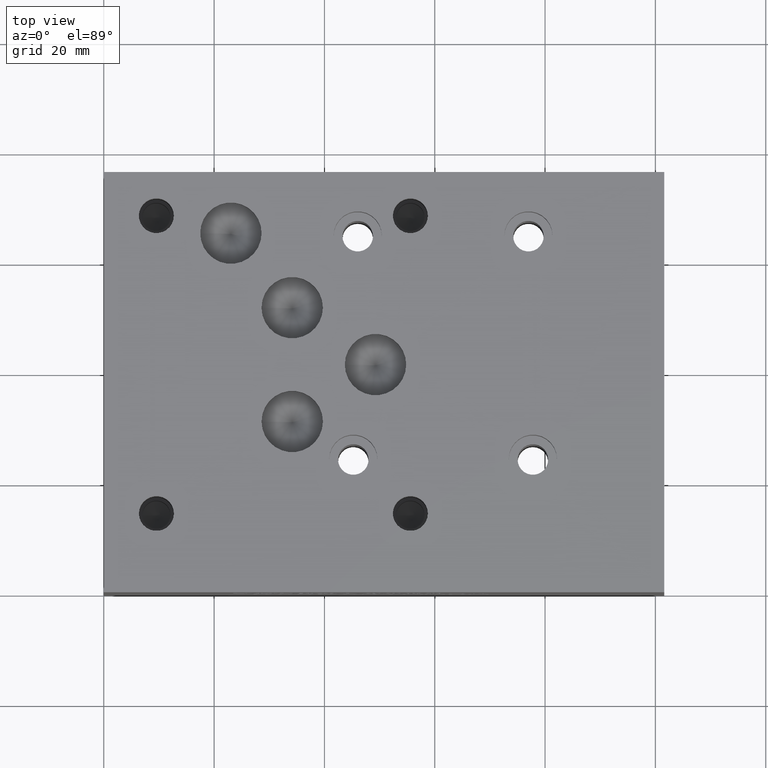
[diagram: clean part render]
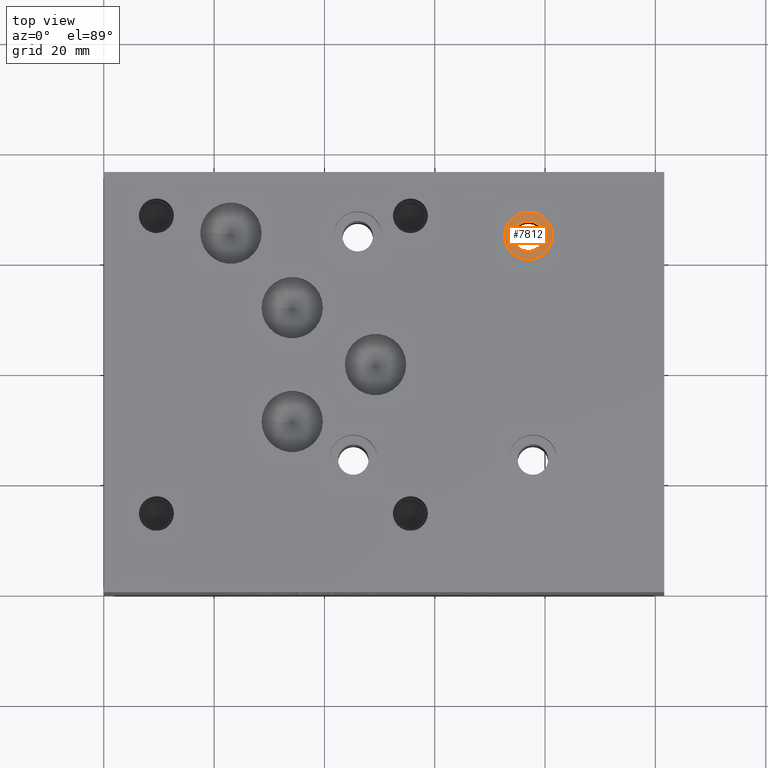
[diagram: same view with one face highlighted and labeled with its STEP entity id]
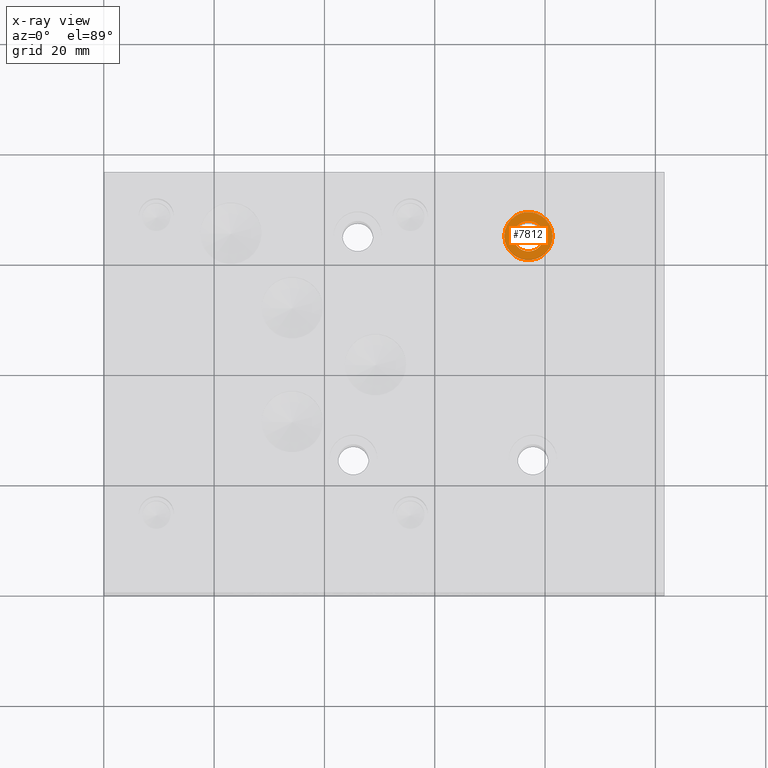
[diagram: x-ray of the same camera — body ghosted, the highlighted face saturated]
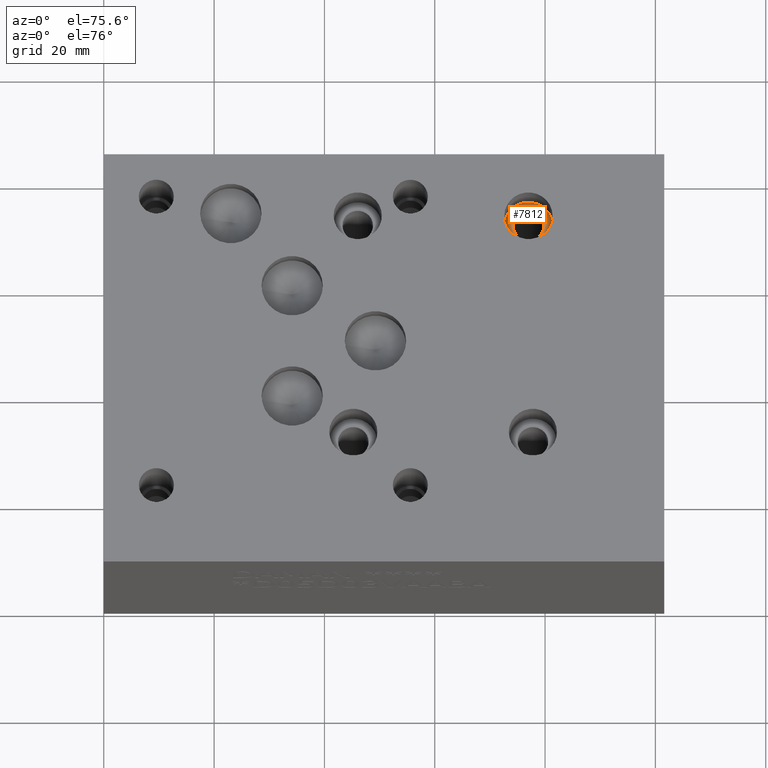
[diagram: same view with one face highlighted and labeled with its STEP entity id]
A machine part, top view. The second image highlights one B-rep face of the part: STEP entity #7812.
The next image is the same camera in x-ray: the body ghosted, the highlighted face saturated — about 0% of this face is hidden behind the body in this view.
A second angle (auxiliary view) of the same face is appended — the face is thin or edge-on in the first view.
In plain terms, the highlighted planar face has unit normal (0, 0, 1).
Its self-contained STEP definition (entity closure, byte-faithful):
#80=CIRCLE('',#8178,4.3688);
#81=CIRCLE('',#8179,2.7686);
#456=FACE_BOUND('',#1304,.T.);
#848=FACE_OUTER_BOUND('',#1303,.T.);
#1303=EDGE_LOOP('',(#6717));
#1304=EDGE_LOOP('',(#6718));
#3630=VERTEX_POINT('',#13109);
#3631=VERTEX_POINT('',#13111);
#4670=EDGE_CURVE('',#3630,#3630,#80,.T.);
#4671=EDGE_CURVE('',#3631,#3631,#81,.T.);
#6717=ORIENTED_EDGE('',*,*,#4670,.T.);
#6718=ORIENTED_EDGE('',*,*,#4671,.F.);
#7095=PLANE('',#8177);
#7812=ADVANCED_FACE('',(#848,#456),#7095,.T.);
#8177=AXIS2_PLACEMENT_3D('',#13108,#9646,#9647);
#8178=AXIS2_PLACEMENT_3D('',#13110,#9648,#9649);
#8179=AXIS2_PLACEMENT_3D('',#13112,#9650,#9651);
#9646=DIRECTION('center_axis',(0.,0.,1.));
#9647=DIRECTION('ref_axis',(1.,0.,0.));
#9648=DIRECTION('center_axis',(0.,0.,1.));
#9649=DIRECTION('ref_axis',(1.,0.,0.));
#9650=DIRECTION('center_axis',(0.,0.,1.));
#9651=DIRECTION('ref_axis',(1.,0.,0.));
#13108=CARTESIAN_POINT('Origin',(76.9874,64.6938,30.9626));
#13109=CARTESIAN_POINT('',(72.6186,64.6938,30.9626));
#13110=CARTESIAN_POINT('Origin',(76.9874,64.6938,30.9626));
#13111=CARTESIAN_POINT('',(74.2188,64.6938,30.9626));
#13112=CARTESIAN_POINT('Origin',(76.9874,64.6938,30.9626));